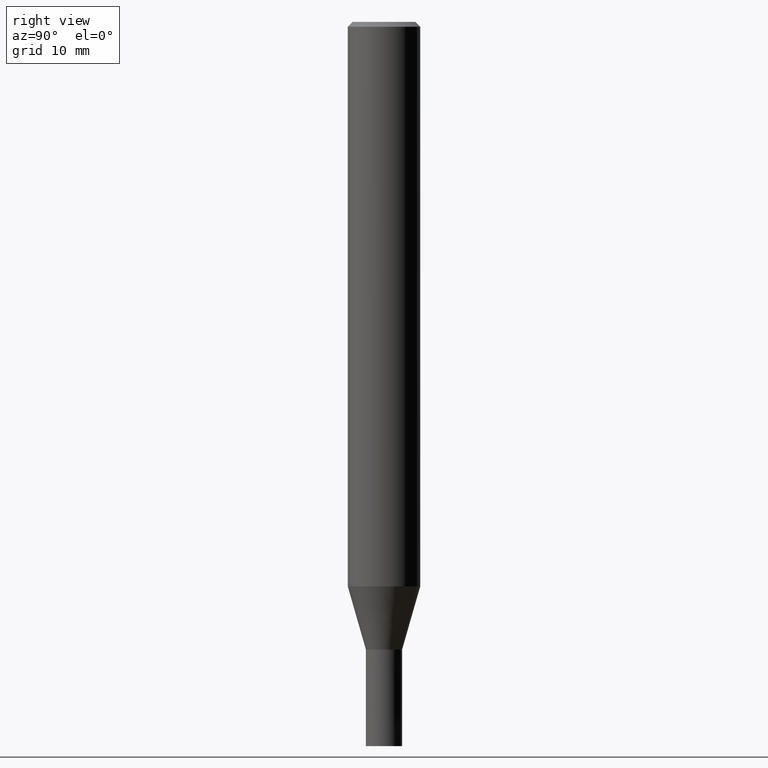
[diagram: clean part render]
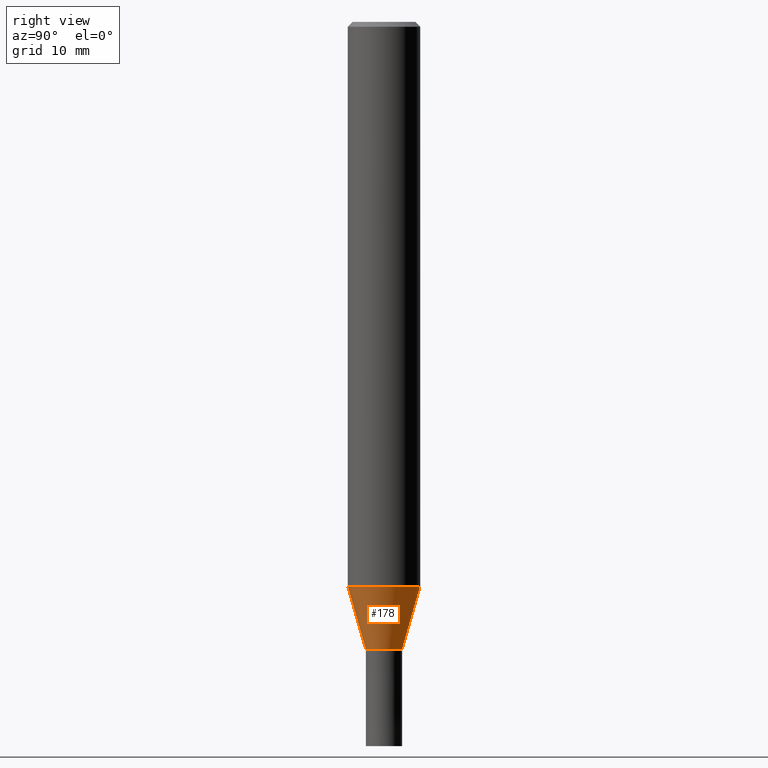
[diagram: same view with one face highlighted and labeled with its STEP entity id]
A machine part, right view. The second image highlights one B-rep face of the part: STEP entity #178.
In plain terms, the highlighted conical surface has half-angle 16 deg.
Its self-contained STEP definition (entity closure, byte-faithful):
#86=VERTEX_POINT('',#208);
#96=EDGE_CURVE('',#134,#114,#218,.T.);
#114=VERTEX_POINT('',#238);
#134=VERTEX_POINT('',#259);
#152=EDGE_CURVE('',#156,#134,#279,.T.);
#156=VERTEX_POINT('',#285);
#176=EDGE_CURVE('',#86,#156,#309,.T.);
#178=ADVANCED_FACE('',(#311),#312,.T.);
#180=EDGE_CURVE('',#86,#114,#314,.T.);
#208=CARTESIAN_POINT('',(0.0,2.99995,-46.769));
#218=LINE('',#350,#351);
#238=CARTESIAN_POINT('',(3.67375783114944E-016,-2.99995,-46.769));
#259=CARTESIAN_POINT('',(1.83684830041587E-016,-1.49995,-52.0));
#279=CIRCLE('',#427,1.49995);
#285=CARTESIAN_POINT('',(0.0,1.49995,-52.0));
#309=LINE('',#462,#463);
#311=FACE_OUTER_BOUND('',#465,.T.);
#312=CONICAL_SURFACE('',#466,2.24995,0.279258842899557);
#314=CIRCLE('',#469,2.99995);
#350=CARTESIAN_POINT('',(2.75530306578266E-016,-2.24995,-49.3845));
#351=VECTOR('',#490,1.0);
#427=AXIS2_PLACEMENT_3D('',#560,#561,#562);
#462=CARTESIAN_POINT('',(-2.75530306578266E-016,2.24995,-49.3845));
#463=VECTOR('',#604,1.0);
#465=EDGE_LOOP('',(#606,#607,#608,#609));
#466=AXIS2_PLACEMENT_3D('',#610,#611,#612);
#469=AXIS2_PLACEMENT_3D('',#613,#614,#615);
#490=DIRECTION('',(3.37554511665357E-017,-0.275643279664314,0.961259997282682));
#560=CARTESIAN_POINT('',(0.0,0.0,-52.0));
#561=DIRECTION('',(0.0,0.0,-1.0));
#562=DIRECTION('',(0.0,1.0,0.0));
#604=DIRECTION('',(3.37554511665357E-017,-0.275643279664314,-0.961259997282682));
#606=ORIENTED_EDGE('',*,*,#176,.F.);
#607=ORIENTED_EDGE('',*,*,#180,.T.);
#608=ORIENTED_EDGE('',*,*,#96,.F.);
#609=ORIENTED_EDGE('',*,*,#152,.F.);
#610=CARTESIAN_POINT('',(0.0,0.0,-49.3845));
#611=DIRECTION('',(-0.0,-0.0,1.0));
#612=DIRECTION('',(0.0,1.0,0.0));
#613=CARTESIAN_POINT('',(0.0,0.0,-46.769));
#614=DIRECTION('',(0.0,0.0,-1.0));
#615=DIRECTION('',(0.0,1.0,0.0));